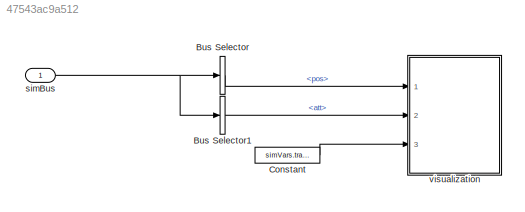
MODEL slx_47543ac9a512
KIND model
CONFIG AbsTol = auto
CONFIG EnableMultiTasking = off
CONFIG FixedStep = 1/simVars.visFreq
CONFIG InitFcn = vis_init
CONFIG MaxStep = auto
CONFIG MinStep = auto
CONFIG RelTol = 1e-3
CONFIG SampleTimeConstraint = Unconstrained
CONFIG Solver = FixedStepAuto
CONFIG SolverName = FixedStepAuto
CONFIG StartTime = 0.0
CONFIG StopTime = inf
BLOCK [BusSelector] Bus Selector
  OutputSignals = pos
  Ports = [1, 1]
BLOCK [BusSelector] Bus Selector1
  OutputSignals = att
  Ports = [1, 1]
BLOCK [Constant] Constant
  Value = simVars.track
BLOCK [Inport] simBus
  OutDataTypeStr = Bus: simBus
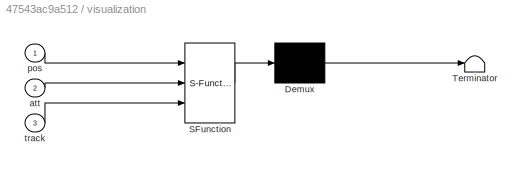
BLOCK [SubSystem] visualization
  ErrorFcn = Stateflow.Translate.translate
  PermitHierarchicalResolution = ExplicitOnly
  Ports = [3]
  RequestExecContextInheritance = off
  SFBlockType = MATLAB Function
  TreatAsAtomicUnit = on
BLOCK [Demux] visualization/ Demux 
  Outputs = 1
  Ports = [1, 1]
BLOCK [S-Function] visualization/ SFunction 
  EnableBusSupport = on
  FunctionName = sf_sfun
  PortCounts = [3 1]
  Ports = [3, 1]
  SFcnIsStateOwnerBlock = off
  SFunctionDeploymentMode = off
  Tag = Stateflow S-Function 3
BLOCK [Terminator] visualization/ Terminator 
BLOCK [Inport] visualization/att
  Port = 2
BLOCK [Inport] visualization/pos
BLOCK [Inport] visualization/track
  Port = 3
LINE Bus Selector1:1 -> visualization:2
LINE Bus Selector:1 -> visualization:1
LINE Constant:1 -> visualization:3
NET simBus:1 -> Bus Selector1:1, Bus Selector:1
note: NET lines group one-source signal fan-out (src -> all destinations, sorted); 1:1 wires keep LINE
CHART visualization states=1 transitions=1
  STATE_LABEL 'eML_blk_kernel()'
  STATE_LABEL "SCRIPT:\nfunction fcn(pos,att,track)\n\npersistent posTrack; if isempty(posTrack); posTrack = [pos(1),pos(2),pos(3)]; end\n\nx = pos(1);\ny = pos(2);\nz = pos(3);\n\nposTrack = [posTrack; [pos(1),pos(2),pos(3)]];\n\nphi = att(1);\ntheta = att(2);\nyaw = att(3);\n\n\n% Drone\nt = get(gca,'Children');\nt = t(2);\n\nS = makehgtform('translate',[x y z]);\nRz = makehgtform('zrotate',yaw);\nRy = makehgtform('yrotate',theta);...<+368ch>"
CHART  states=0 transitions=0
